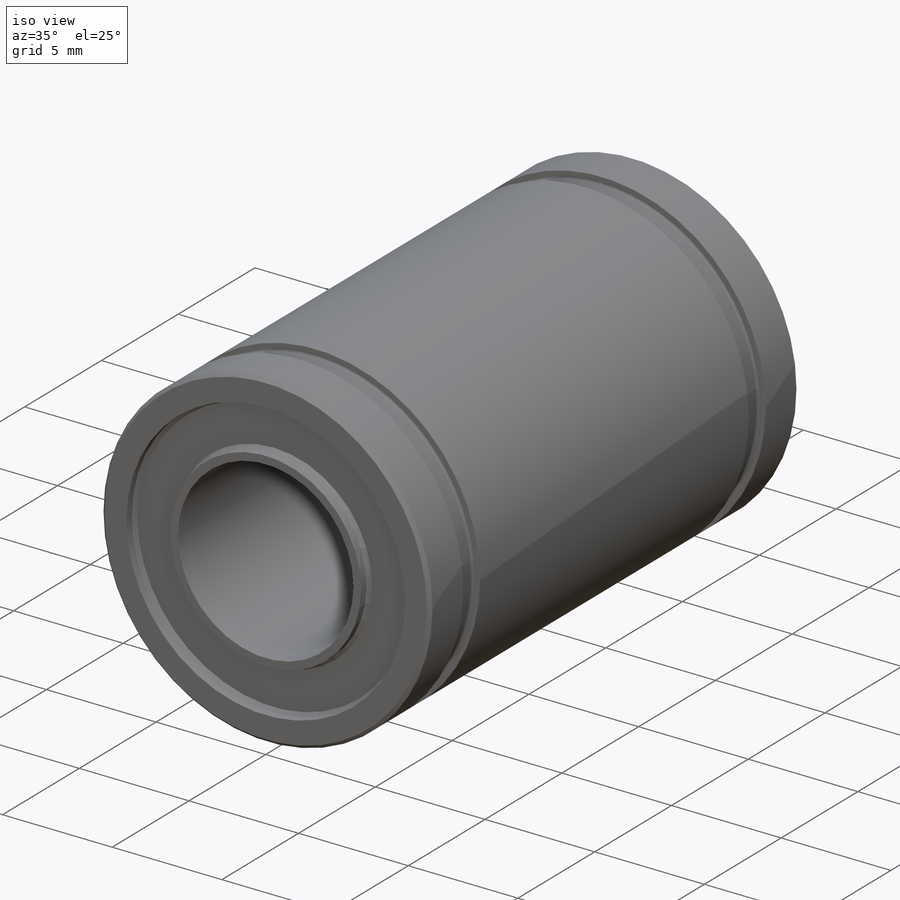
[diagram: iso view]
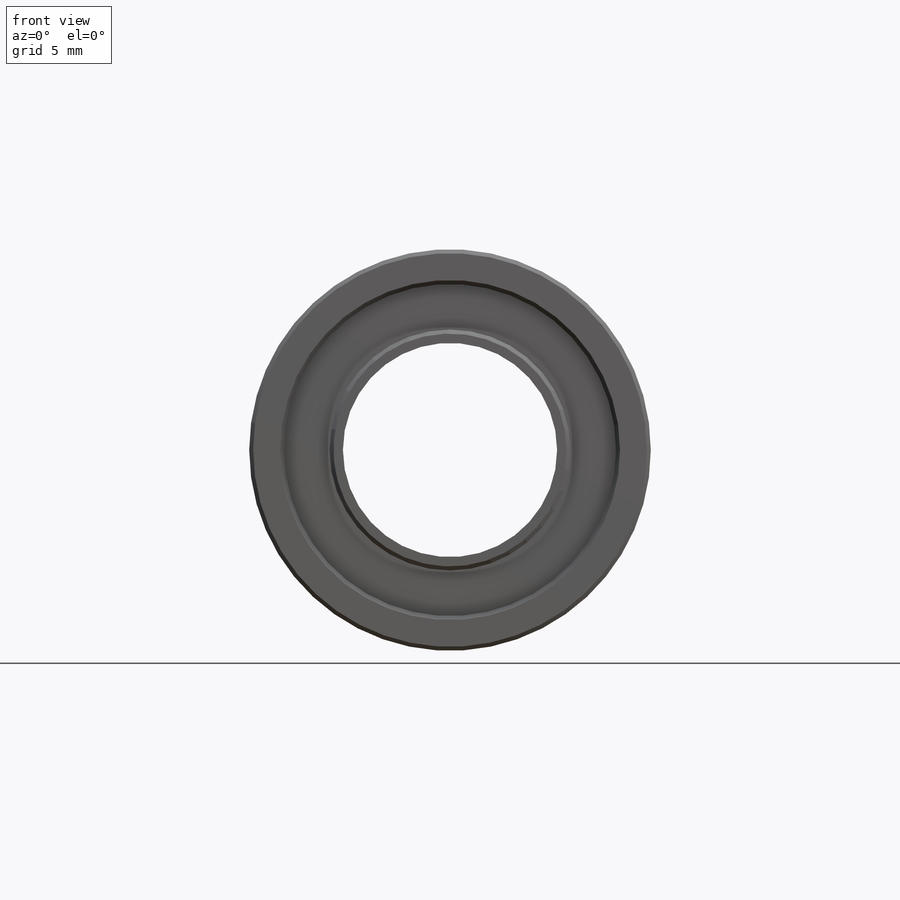
[diagram: front view]
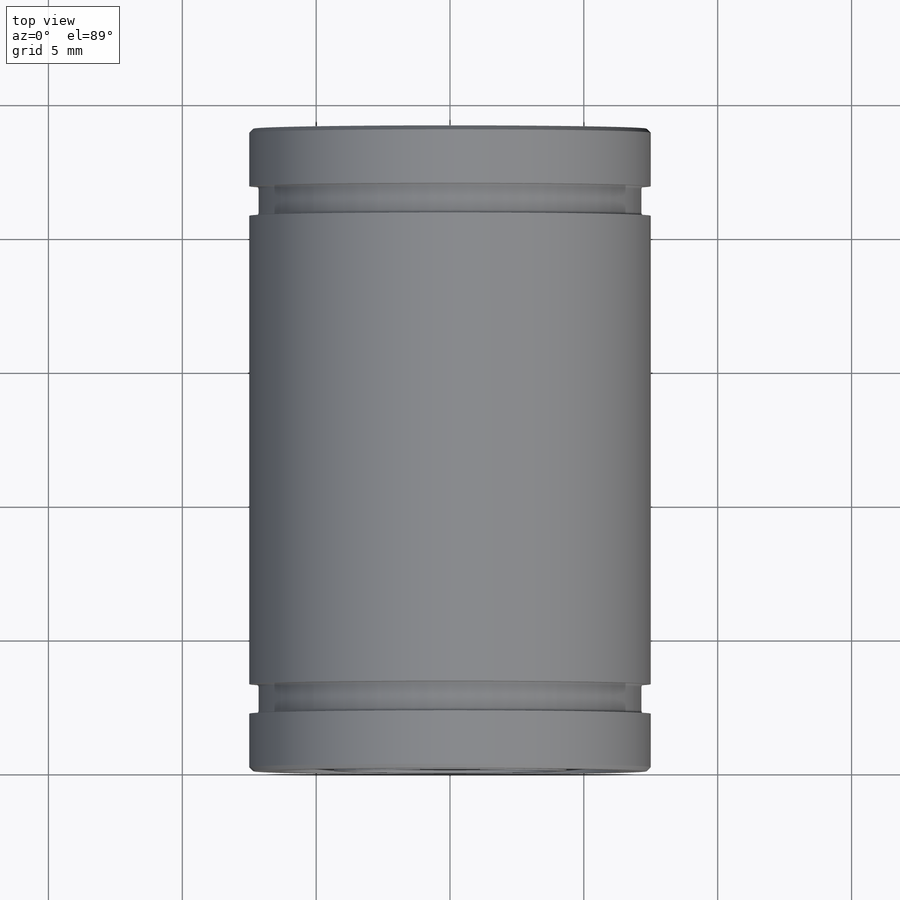
[diagram: top view]
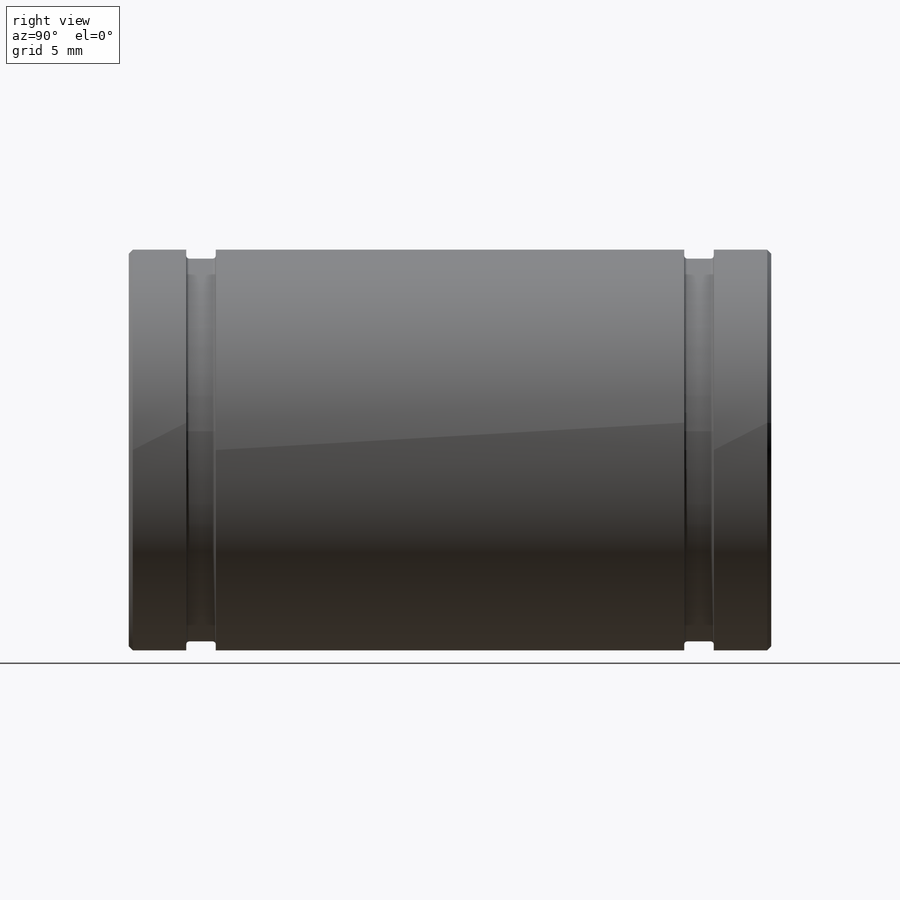
[diagram: right view]
SOLIDWORKS PART (.sldprt)
format: sldprt  version: not decoded by parser v0  size: 362,496 bytes
history: native  units: mm
features: sketch x7, cut_extrude x2, plane x2, cut_revolve x2, material x1, extrude x1, chamfer x1 (+13 scaffold rows collapsed)
feature tree (29):
  scaffold x13  (default folders/planes/origin — collapsed)
  material  "1060 Alloy"
  sketch  "Sketch1"  dims[D1=8.0mm D2=15.0mm]
  extrude  "Boss-Extrude1"  Depth=24mm
  sketch  "Sketch2"  dims[D1=12.7mm D2=8.7mm]
  cut_extrude  "Cut-Extrude1"  Depth=0.5mm
  sketch  "Sketch3"  dims[D1=8.7mm D2=12.7mm]
  cut_extrude  "Cut-Extrude2"  Depth=0.5mm
  sketch  "3DSketch1"
  plane  "Plane5"
  sketch  "Groove Sketch"  dims[c1.Radius=0.11mm c1.ID=14.3mm c1.OD=15.0mm c1.Width=1.1mm c1.Location=5.0mm c1.D1=3.25mm c1.D2=3.25mm c2.D1=3.25mm]
  cut_revolve  "Retaining Ring Groove"  Angle=360deg
  sketch  "3DSketch11"
  plane  "Plane51"
  sketch  "Groove Sketch1"  dims[c1.Radius=0.11mm c1.ID=14.3mm c1.OD=15.0mm c1.Width=1.1mm c1.Location=5.0mm c1.D1=3.25mm c1.D2=3.25mm c1.D3=90.0deg c2.D3=4.35mm c2.D1=3.25mm]
  cut_revolve  "Retaining Ring Groove1"  Angle=360deg
  chamfer  "Chamfer1"  Distance=0.15mm Angle=45deg
decode coverage: 11 of 13 modeling features carry decoded parameters
note: suppression state not decoded; provenance and decode notes live in map.json
